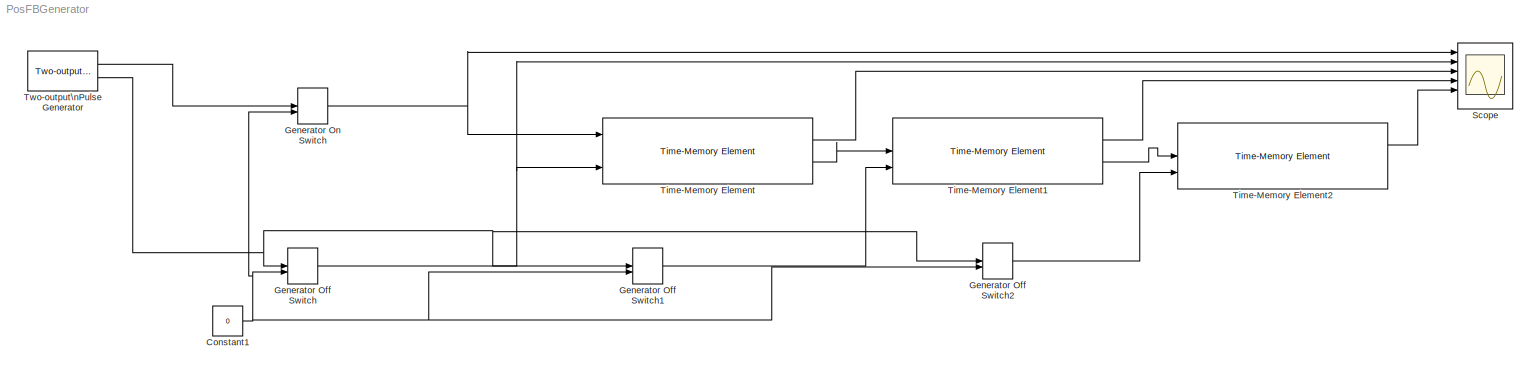
MODEL PosFBGenerator
KIND model
BLOCK [Constant] Constant1
  SID = 12
  Value = 0
BLOCK [ManualSwitch] Generator Off Switch
  CurrentSetting = 0
  SID = 11
BLOCK [ManualSwitch] Generator Off Switch1
  CurrentSetting = 0
  SID = 65
BLOCK [ManualSwitch] Generator Off Switch2
  CurrentSetting = 0
  SID = 66
BLOCK [ManualSwitch] Generator On Switch
  CurrentSetting = 0
  SID = 18
BLOCK [Scope] Scope
  Floating = off
  NumInputPorts = 6
  Ports = [6]
  SID = 4
  ScopeSpecificationString = Simulink.scopes.TimeScopeBlockCfg('CurrentConfiguration', extmgr.ConfigurationSet(extmgr.Configuration('Core','General UI',true),extmgr.Configuration('Core','Source UI',true),extmgr.Configuration('Sources','WiredSimulink',true,'DataLoggingSaveFormat','StructureWithTime','DataLoggingMaxPoints','500000','DataLoggingLimitDataPoints',true,'DataLoggingDecimation','1','DataLoggingDecimateData',true),ext...<+5096ch>
BLOCK [Reference] Time-Memory Element  REF=NeuroModelerLibrary/Memory Modules/Time-Memory Element
  AllowZeroVariantControls = off
  AutoFrameSizeCalculation = off
  Latency = 0
  Ports = [3, 2]
  PropagateVariantConditions = off
  RTWMemSecDataConstants = Inherit from model
  RTWMemSecDataInternal = Inherit from model
  RTWMemSecDataParameters = Inherit from model
  RTWMemSecFuncExecute = Inherit from model
  RTWMemSecFuncInitTerm = Inherit from model
  SID = 67
  ShowPortLabels = FromPortIcon
  SourceBlock = NeuroModelerLibrary/Memory Modules/Time-Memory Element
  SourceType = SubSystem
  SystemSampleTime = -1
  VariantActivationTime = update diagram
BLOCK [Reference] Time-Memory Element1  REF=NeuroModelerLibrary/Memory Modules/Time-Memory Element
  AllowZeroVariantControls = off
  AutoFrameSizeCalculation = off
  Latency = 0
  Ports = [3, 2]
  PropagateVariantConditions = off
  RTWMemSecDataConstants = Inherit from model
  RTWMemSecDataInternal = Inherit from model
  RTWMemSecDataParameters = Inherit from model
  RTWMemSecFuncExecute = Inherit from model
  RTWMemSecFuncInitTerm = Inherit from model
  SID = 68
  ShowPortLabels = FromPortIcon
  SourceBlock = NeuroModelerLibrary/Memory Modules/Time-Memory Element
  SourceType = SubSystem
  SystemSampleTime = -1
  VariantActivationTime = update diagram
BLOCK [Reference] Time-Memory Element2  REF=NeuroModelerLibrary/Memory Modules/Time-Memory Element
  AllowZeroVariantControls = off
  AutoFrameSizeCalculation = off
  Latency = 0
  Ports = [3, 2]
  PropagateVariantConditions = off
  RTWMemSecDataConstants = Inherit from model
  RTWMemSecDataInternal = Inherit from model
  RTWMemSecDataParameters = Inherit from model
  RTWMemSecFuncExecute = Inherit from model
  RTWMemSecFuncInitTerm = Inherit from model
  SID = 69
  ShowPortLabels = FromPortIcon
  SourceBlock = NeuroModelerLibrary/Memory Modules/Time-Memory Element
  SourceType = SubSystem
  SystemSampleTime = -1
  VariantActivationTime = update diagram
BLOCK [Reference] Two-output\nPulse Generator  REF=NeuroModelerLibrary/Support/Two-output\nPulse Generator
  A = 1
  OOff1 = 7700
  OOff2 = 7000
  OOn1 = 0
  OOn2 = 0
  P1 = 1000
  P2 = 30
  PW = 1
  Ports = [0, 2]
  RTWMemSecDataConstants = Inherit from model
  RTWMemSecDataInternal = Inherit from model
  RTWMemSecDataParameters = Inherit from model
  RTWMemSecFuncExecute = Inherit from model
  RTWMemSecFuncInitTerm = Inherit from model
  SID = 1
  ST = 0.001
  SourceBlock = NeuroModelerLibrary/Support/Two-output\nPulse Generator
NET Constant1:1 -> Generator Off Switch1:2, Generator Off Switch2:2, Generator Off Switch:2, Generator On Switch:2
LINE Generator Off Switch1:1 -> Time-Memory Element1:3
LINE Generator Off Switch2:1 -> Time-Memory Element2:3
NET Generator Off Switch:1 -> Scope:2, Time-Memory Element:3
NET Generator On Switch:1 -> Scope:1, Time-Memory Element:1
LINE Time-Memory Element1:1 -> Scope:4
LINE Time-Memory Element1:2 -> Time-Memory Element2:2
LINE Time-Memory Element2:1 -> Scope:5
LINE Time-Memory Element:1 -> Scope:3
LINE Time-Memory Element:2 -> Time-Memory Element1:2
LINE Two-output\nPulse Generator:1 -> Generator On Switch:1
NET Two-output\nPulse Generator:2 -> Generator Off Switch1:1, Generator Off Switch2:1, Generator Off Switch:1
note: NET lines group one-source signal fan-out (src -> all destinations, sorted); 1:1 wires keep LINE
